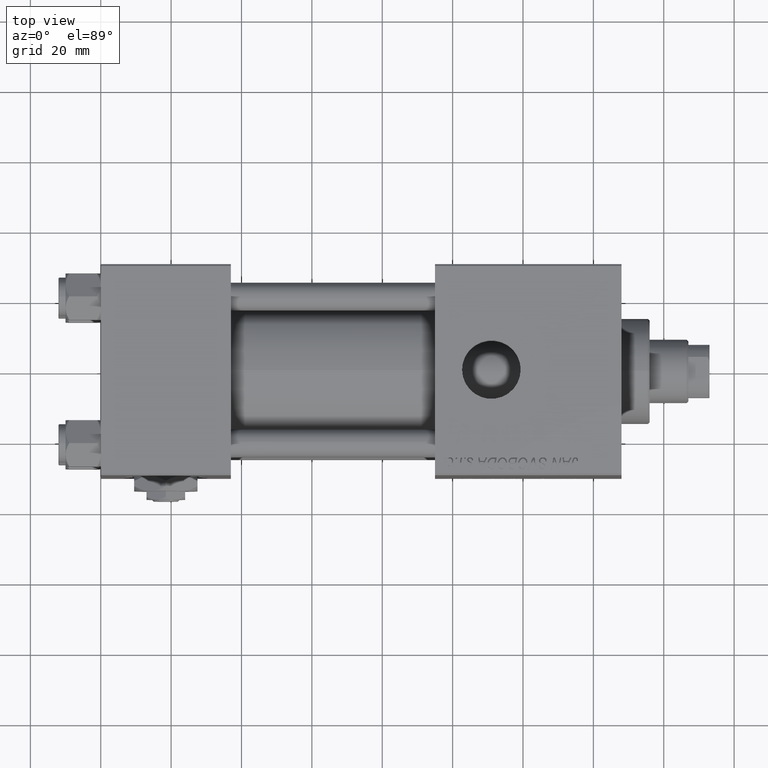
[diagram: clean part render]
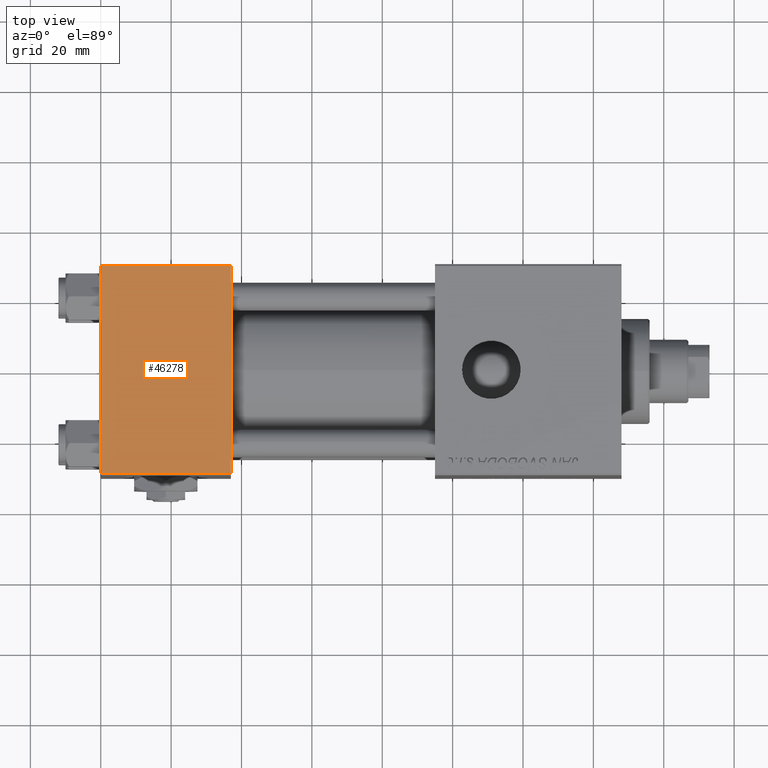
[diagram: same view with one face highlighted and labeled with its STEP entity id]
A machine part, top view. The second image highlights one B-rep face of the part: STEP entity #46278.
In plain terms, the highlighted planar face has unit normal (0, 0, -1).
Its self-contained STEP definition (entity closure, byte-faithful):
#1727 = FACE_OUTER_BOUND ( 'NONE', #32814, .T. ) ;
#3238 = CARTESIAN_POINT ( 'NONE',  ( 37.00000000000000000, -29.50000000000000000, 29.99999999999999289 ) ) ;
#3669 = CARTESIAN_POINT ( 'NONE',  ( 0.000000000000000000, 29.49999999999999289, 30.00000000000000000 ) ) ;
#4911 = DIRECTION ( 'NONE',  ( 0.000000000000000000, 1.156482317317871725E-16, -1.000000000000000000 ) ) ;
#9043 = CARTESIAN_POINT ( 'NONE',  ( 0.000000000000000000, 29.49999999999999289, 30.00000000000000000 ) ) ;
#9290 = VERTEX_POINT ( 'NONE', #41600 ) ;
#13786 = DIRECTION ( 'NONE',  ( -1.000000000000000000, 0.000000000000000000, 0.000000000000000000 ) ) ;
#14011 = VECTOR ( 'NONE', #40027, 1000.000000000000000 ) ;
#14418 = EDGE_CURVE ( 'NONE', #19055, #24267, #39411, .T. ) ;
#16710 = VECTOR ( 'NONE', #13786, 1000.000000000000000 ) ;
#17325 = CARTESIAN_POINT ( 'NONE',  ( 37.00000000000000000, 29.99999999999999289, 30.00000000000000000 ) ) ;
#18072 = AXIS2_PLACEMENT_3D ( 'NONE', #17325, #4911, #49784 ) ;
#19055 = VERTEX_POINT ( 'NONE', #39333 ) ;
#19094 = DIRECTION ( 'NONE',  ( 1.000000000000000000, 0.000000000000000000, 0.000000000000000000 ) ) ;
#19984 = LINE ( 'NONE', #23934, #14011 ) ;
#20002 = LINE ( 'NONE', #24231, #41657 ) ;
#21538 = VERTEX_POINT ( 'NONE', #3669 ) ;
#22755 = ORIENTED_EDGE ( 'NONE', *, *, #14418, .T. ) ;
#23934 = CARTESIAN_POINT ( 'NONE',  ( 0.000000000000000000, 29.99999999999999289, 30.00000000000000000 ) ) ;
#24231 = CARTESIAN_POINT ( 'NONE',  ( 37.00000000000000000, 29.99999999999999289, 30.00000000000000000 ) ) ;
#24267 = VERTEX_POINT ( 'NONE', #28731 ) ;
#26754 = ORIENTED_EDGE ( 'NONE', *, *, #50500, .T. ) ;
#28731 = CARTESIAN_POINT ( 'NONE',  ( 37.00000000000000000, -29.49999999999998579, 29.99999999999999289 ) ) ;
#29559 = VECTOR ( 'NONE', #19094, 1000.000000000000000 ) ;
#31351 = DIRECTION ( 'NONE',  ( 0.000000000000000000, -1.000000000000000000, -1.156482317317871725E-16 ) ) ;
#32814 = EDGE_LOOP ( 'NONE', ( #26754, #22755, #48995, #45925 ) ) ;
#39333 = CARTESIAN_POINT ( 'NONE',  ( 0.000000000000000000, -29.49999999999998579, 29.99999999999999289 ) ) ;
#39411 = LINE ( 'NONE', #3238, #29559 ) ;
#40027 = DIRECTION ( 'NONE',  ( 0.000000000000000000, -1.000000000000000000, -1.156482317317871725E-16 ) ) ;
#41600 = CARTESIAN_POINT ( 'NONE',  ( 37.00000000000000000, 29.49999999999999289, 30.00000000000000000 ) ) ;
#41657 = VECTOR ( 'NONE', #31351, 1000.000000000000000 ) ;
#41870 = EDGE_CURVE ( 'NONE', #9290, #21538, #49691, .T. ) ;
#45055 = EDGE_CURVE ( 'NONE', #9290, #24267, #20002, .T. ) ;
#45303 = PLANE ( 'NONE',  #18072 ) ;
#45925 = ORIENTED_EDGE ( 'NONE', *, *, #41870, .T. ) ;
#46278 = ADVANCED_FACE ( 'NONE', ( #1727 ), #45303, .F. ) ;
#48995 = ORIENTED_EDGE ( 'NONE', *, *, #45055, .F. ) ;
#49691 = LINE ( 'NONE', #9043, #16710 ) ;
#49784 = DIRECTION ( 'NONE',  ( 0.000000000000000000, 1.000000000000000000, 1.156482317317871725E-16 ) ) ;
#50500 = EDGE_CURVE ( 'NONE', #21538, #19055, #19984, .T. ) ;